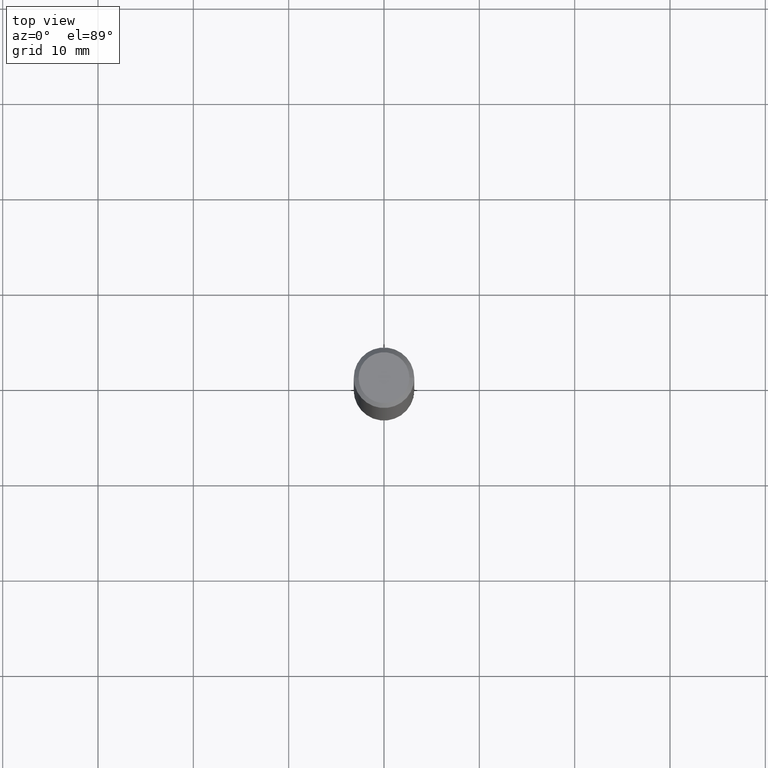
[diagram: clean part render]
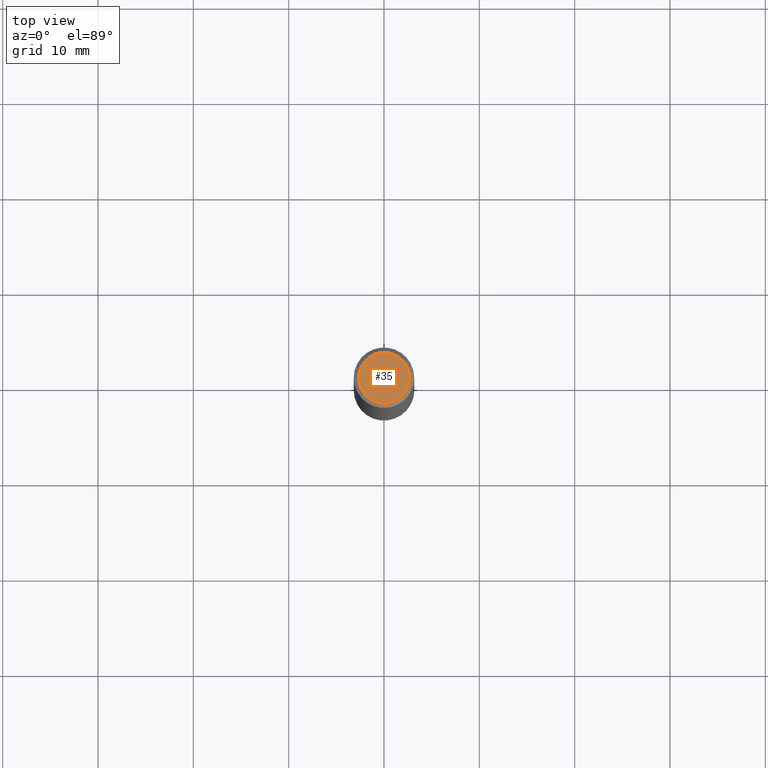
[diagram: same view with one face highlighted and labeled with its STEP entity id]
A machine part, top view. The second image highlights one B-rep face of the part: STEP entity #35.
In plain terms, the highlighted planar face has unit normal (0, -0, -1).
Its self-contained STEP definition (entity closure, byte-faithful):
#21 = CARTESIAN_POINT ( 'NONE',  ( 7.332110811570581229E-16, 0.1050000000000000377, -3.922166155191328542E-16 ) ) ;
#22 = DIRECTION ( 'NONE',  ( 1.000000000000000000, -6.982962677686267499E-15, 4.874400871621236533E-29 ) ) ;
#35 = ADVANCED_FACE ( 'NONE', ( #309 ), #373, .F. ) ;
#37 = DIRECTION ( 'NONE',  ( 1.000000000000000000, -6.982962677686267499E-15, 4.874400871621236533E-29 ) ) ;
#80 = CARTESIAN_POINT ( 'NONE',  ( 1.252621697202263706E-45, -1.788411804456536750E-31, -5.122214988120493535E-17 ) ) ;
#90 = EDGE_CURVE ( 'NONE', #223, #364, #283, .T. ) ;
#135 = CIRCLE ( 'NONE', #365, 0.1050000000000000377 ) ;
#180 = EDGE_CURVE ( 'NONE', #364, #223, #135, .T. ) ;
#191 = CARTESIAN_POINT ( 'NONE',  ( 1.252621697202263706E-45, -1.788411804456536750E-31, -5.122214988120493535E-17 ) ) ;
#207 = DIRECTION ( 'NONE',  ( -2.445468806185136597E-29, 3.491481338843145583E-15, 1.000000000000000000 ) ) ;
#215 = EDGE_LOOP ( 'NONE', ( #337, #416 ) ) ;
#223 = VERTEX_POINT ( 'NONE', #394 ) ;
#279 = DIRECTION ( 'NONE',  ( 2.438088387897960049E-29, -3.491481338843145188E-15, -1.000000000000000000 ) ) ;
#283 = CIRCLE ( 'NONE', #413, 0.1050000000000000377 ) ;
#295 = AXIS2_PLACEMENT_3D ( 'NONE', #21, #279, #410 ) ;
#309 = FACE_OUTER_BOUND ( 'NONE', #215, .T. ) ;
#322 = DIRECTION ( 'NONE',  ( -2.445468806185136597E-29, 3.491481338843145583E-15, 1.000000000000000000 ) ) ;
#337 = ORIENTED_EDGE ( 'NONE', *, *, #180, .T. ) ;
#364 = VERTEX_POINT ( 'NONE', #402 ) ;
#365 = AXIS2_PLACEMENT_3D ( 'NONE', #191, #322, #37 ) ;
#373 = PLANE ( 'NONE',  #295 ) ;
#394 = CARTESIAN_POINT ( 'NONE',  ( 0.1050000000000000377, -8.238720831321576644E-16, -5.122214988119949344E-17 ) ) ;
#402 = CARTESIAN_POINT ( 'NONE',  ( -0.1050000000000000377, 7.681258945454890818E-16, -5.122214988121018004E-17 ) ) ;
#410 = DIRECTION ( 'NONE',  ( -1.000000000000000000, 6.982962677686265922E-15, -4.876176775795935793E-29 ) ) ;
#413 = AXIS2_PLACEMENT_3D ( 'NONE', #80, #207, #22 ) ;
#416 = ORIENTED_EDGE ( 'NONE', *, *, #90, .T. ) ;